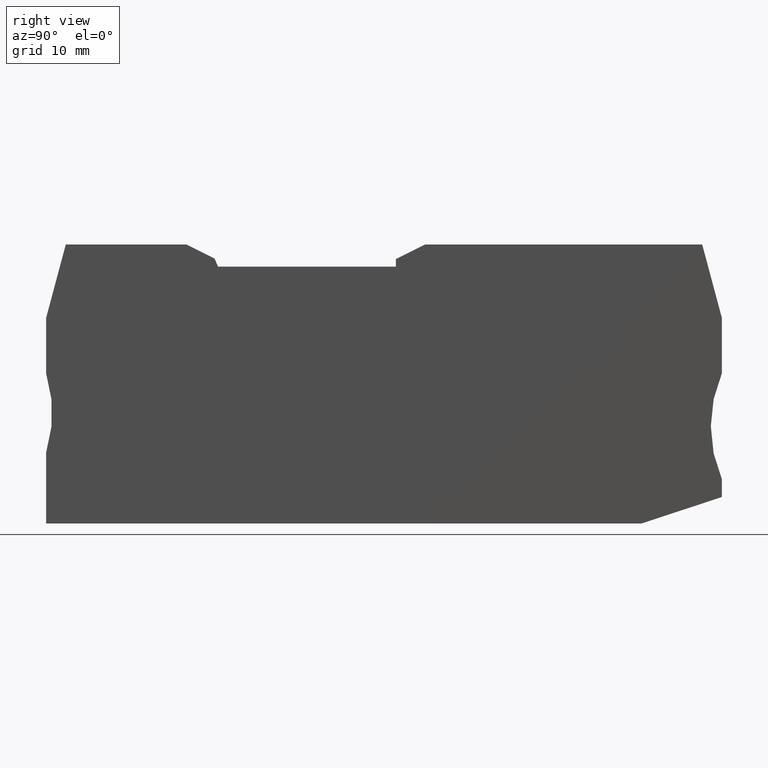
[diagram: clean part render]
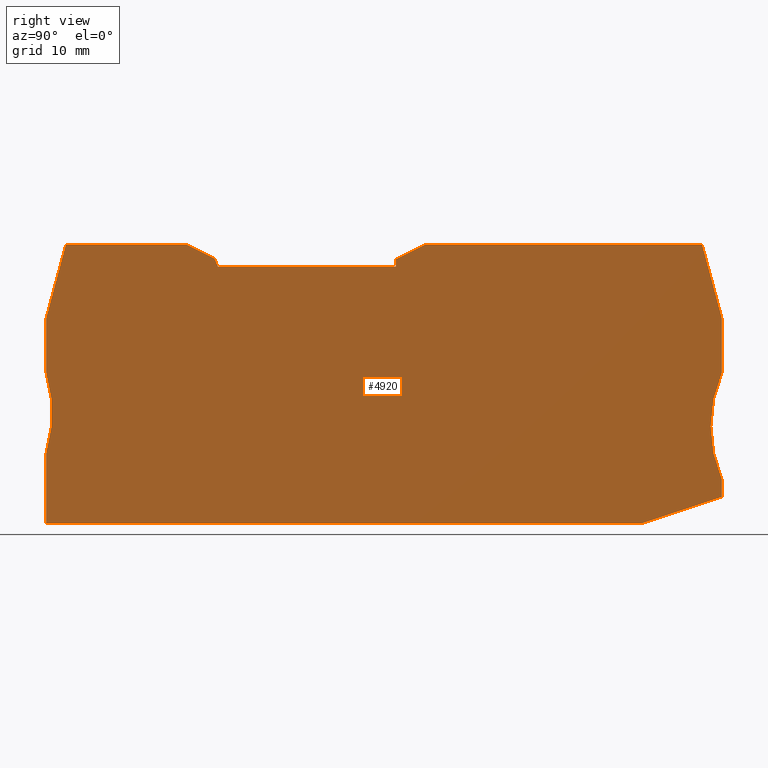
[diagram: same view with one face highlighted and labeled with its STEP entity id]
A machine part, right view. The second image highlights one B-rep face of the part: STEP entity #4920.
In plain terms, the highlighted planar face has unit normal (1, -0, -0).
Its self-contained STEP definition (entity closure, byte-faithful):
#120=CARTESIAN_POINT('',(28.1611811075906,-9.15000000000795,
2.19999999999844));
#130=VERTEX_POINT('',#120);
#280=CARTESIAN_POINT('',(48.278415052629,-9.15000000000795,
2.19999999999844));
#290=VERTEX_POINT('',#280);
#320=CARTESIAN_POINT('',(47.920285,-9.15000000000794,2.19999999999844));
#330=DIRECTION('',(-1.,0.,0.));
#340=VECTOR('',#330,1.);
#350=LINE('',#320,#340);
#360=EDGE_CURVE('',#290,#130,#350,.T.);
#530=CARTESIAN_POINT('',(47.920285,-47.4566600413391,2.19999999999833));
#540=DIRECTION('',(-0.949806217012117,-0.312838856482264,
-9.43689570931383E-16));
#550=VECTOR('',#540,1.);
#560=LINE('',#530,#550);
#570=CARTESIAN_POINT('',(85.1296808260528,-35.2009550015923,
2.19999999999837));
#580=VERTEX_POINT('',#570);
#590=CARTESIAN_POINT('',(76.0243170722712,-38.2000000000014,
2.19999999999836));
#600=VERTEX_POINT('',#590);
#610=EDGE_CURVE('',#580,#600,#560,.T.);
#1040=CARTESIAN_POINT('',(82.9015374042713,-6.65000000001046,
2.19999999999845));
#1050=VERTEX_POINT('',#1040);
#1100=CARTESIAN_POINT('',(47.920285,-6.65000000001046,2.19999999999845))
;
#1110=DIRECTION('',(1.,0.,0.));
#1120=VECTOR('',#1110,1.);
#1130=LINE('',#1100,#1120);
#1140=CARTESIAN_POINT('',(51.5784150526186,-6.65000000001046,
2.19999999999845));
#1150=VERTEX_POINT('',#1140);
#1160=EDGE_CURVE('',#1150,#1050,#1130,.T.);
#1510=CARTESIAN_POINT('',(85.1296808260528,-33.2000000000057,
2.19999999999837));
#1520=VERTEX_POINT('',#1510);
#1570=CARTESIAN_POINT('',(98.8774079109191,-27.2000000000027,
2.19999999999839));
#1580=DIRECTION('',(0.,0.,1.));
#1590=DIRECTION('',(1.,0.,0.));
#1600=AXIS2_PLACEMENT_3D('',#1570,#1580,#1590);
#1610=CIRCLE('',#1600,15.);
#1620=CARTESIAN_POINT('',(85.1296808260516,-21.2000000000027,
2.19999999999841));
#1630=VERTEX_POINT('',#1620);
#1640=EDGE_CURVE('',#1630,#1520,#1610,.T.);
#1960=CARTESIAN_POINT('',(38.6158283461584,-33.886127,2.19999999999837))
;
#1970=DIRECTION('',(-0.389303997086195,0.92110933002153,
2.80331313717852E-15));
#1980=VECTOR('',#1970,1.);
#1990=LINE('',#1960,#1980);
#2000=CARTESIAN_POINT('',(27.7810984886105,-8.25070883130206,
2.19999999999845));
#2010=VERTEX_POINT('',#2000);
#2020=EDGE_CURVE('',#130,#2010,#1990,.T.);
#2400=CARTESIAN_POINT('',(10.9578242464708,-6.65000000001046,
2.19999999999845));
#2410=VERTEX_POINT('',#2400);
#2560=CARTESIAN_POINT('',(24.5796808260341,-6.65000000001046,
2.19999999999845));
#2570=VERTEX_POINT('',#2560);
#2600=CARTESIAN_POINT('',(47.920285,-6.65000000001046,2.19999999999845))
;
#2610=DIRECTION('',(1.,0.,0.));
#2620=VECTOR('',#2610,1.);
#2630=LINE('',#2600,#2620);
#2640=EDGE_CURVE('',#2410,#2570,#2630,.T.);
#2810=CARTESIAN_POINT('',(47.920285,-18.3203020870181,2.19999999999842))
;
#2820=DIRECTION('',(0.894427190999537,-0.447213595500715,
-1.33226762955019E-15));
#2830=VECTOR('',#2820,1.);
#2840=LINE('',#2810,#2830);
#2850=EDGE_CURVE('',#2570,#2010,#2840,.T.);
#3220=CARTESIAN_POINT('',(48.278415052629,-8.30000000000333,
2.19999999999845));
#3230=VERTEX_POINT('',#3220);
#3260=CARTESIAN_POINT('',(48.278415052629,-33.886127,2.19999999999837));
#3270=DIRECTION('',(3.78653234506086E-29,1.,3.03161873061274E-15));
#3280=VECTOR('',#3270,1.);
#3290=LINE('',#3260,#3280);
#3300=EDGE_CURVE('',#290,#3230,#3290,.T.);
#3480=CARTESIAN_POINT('',(8.72968082469054,-33.886127,2.19999999999837))
;
#3490=DIRECTION('',(0.,1.,3.03161873061274E-15));
#3500=VECTOR('',#3490,1.);
#3510=LINE('',#3480,#3500);
#3520=CARTESIAN_POINT('',(8.72968082469054,-38.2000000000014,
2.19999999999836));
#3530=VERTEX_POINT('',#3520);
#3540=CARTESIAN_POINT('',(8.72968082469054,-30.2000000000115,
2.19999999999838));
#3550=VERTEX_POINT('',#3540);
#3560=EDGE_CURVE('',#3530,#3550,#3510,.T.);
#4070=CARTESIAN_POINT('',(85.1296808260516,-14.9655444566315,
2.19999999999843));
#4080=VERTEX_POINT('',#4070);
#4110=CARTESIAN_POINT('',(90.1994356388816,-33.886127,2.19999999999837))
;
#4120=DIRECTION('',(0.258819045102903,-0.965925826288966,
-2.96984659087229E-15));
#4130=VECTOR('',#4120,1.);
#4140=LINE('',#4110,#4130);
#4150=EDGE_CURVE('',#1050,#4080,#4140,.T.);
#4280=CARTESIAN_POINT('',(79.8284829547486,-6.65000000001046,
2.19999999999845));
#4290=DIRECTION('',(0.,-3.03161873061274E-15,1.));
#4300=DIRECTION('',(0.,-1.,-3.03161873061274E-15));
#4310=AXIS2_PLACEMENT_3D('',#4280,#4290,#4300);
#4320=PLANE('',#4310);
#4330=CARTESIAN_POINT('',(3.65992601186053,-33.886127,2.19999999999837))
;
#4340=DIRECTION('',(0.258819045102903,0.965925826288966,
2.96984659087229E-15));
#4350=VECTOR('',#4340,1.);
#4360=LINE('',#4330,#4350);
#4370=CARTESIAN_POINT('',(8.72968082469053,-14.9655444566315,
2.19999999999843));
#4380=VERTEX_POINT('',#4370);
#4390=EDGE_CURVE('',#4380,#2410,#4360,.T.);
#4400=ORIENTED_EDGE('',*,*,#4390,.F.);
#4410=ORIENTED_EDGE('',*,*,#2640,.F.);
#4420=ORIENTED_EDGE('',*,*,#2850,.F.);
#4430=ORIENTED_EDGE('',*,*,#2020,.T.);
#4440=ORIENTED_EDGE('',*,*,#360,.T.);
#4450=ORIENTED_EDGE('',*,*,#3300,.F.);
#4460=CARTESIAN_POINT('',(47.920285,-8.4790650263176,2.19999999999845));
#4470=DIRECTION('',(0.894427191000128,0.447213595499534,
1.36002320516582E-15));
#4480=VECTOR('',#4470,1.);
#4490=LINE('',#4460,#4480);
#4500=EDGE_CURVE('',#3230,#1150,#4490,.T.);
#4510=ORIENTED_EDGE('',*,*,#4500,.F.);
#4520=ORIENTED_EDGE('',*,*,#1160,.F.);
#4530=ORIENTED_EDGE('',*,*,#4150,.F.);
#4540=CARTESIAN_POINT('',(85.1296808260516,-33.886127,2.19999999999837))
;
#4550=DIRECTION('',(2.77555756156289E-17,-1.,-3.03161873061274E-15));
#4560=VECTOR('',#4550,1.);
#4570=LINE('',#4540,#4560);
#4580=EDGE_CURVE('',#4080,#1630,#4570,.T.);
#4590=ORIENTED_EDGE('',*,*,#4580,.F.);
#4600=ORIENTED_EDGE('',*,*,#1640,.F.);
#4610=CARTESIAN_POINT('',(85.1296808260528,-33.886127,2.19999999999837))
;
#4620=DIRECTION('',(0.,1.,3.03161873061274E-15));
#4630=VECTOR('',#4620,1.);
#4640=LINE('',#4610,#4630);
#4650=EDGE_CURVE('',#580,#1520,#4640,.T.);
#4660=ORIENTED_EDGE('',*,*,#4650,.T.);
#4670=ORIENTED_EDGE('',*,*,#610,.F.);
#4680=CARTESIAN_POINT('',(47.920285,-38.2000000000014,2.19999999999836))
;
#4690=DIRECTION('',(-1.,0.,0.));
#4700=VECTOR('',#4690,1.);
#4710=LINE('',#4680,#4700);
#4720=EDGE_CURVE('',#600,#3530,#4710,.T.);
#4730=ORIENTED_EDGE('',*,*,#4720,.F.);
#4740=ORIENTED_EDGE('',*,*,#3560,.F.);
#4750=CARTESIAN_POINT('',(-5.57940719656269,-25.7000000000085,
2.19999999999839));
#4760=DIRECTION('',(0.,0.,1.));
#4770=DIRECTION('',(1.,0.,0.));
#4780=AXIS2_PLACEMENT_3D('',#4750,#4760,#4770);
#4790=CIRCLE('',#4780,15.);
#4800=CARTESIAN_POINT('',(8.72968082469053,-21.2000000000056,
2.19999999999841));
#4810=VERTEX_POINT('',#4800);
#4820=EDGE_CURVE('',#3550,#4810,#4790,.T.);
#4830=ORIENTED_EDGE('',*,*,#4820,.F.);
#4840=CARTESIAN_POINT('',(8.72968082469053,-33.886127,2.19999999999837))
;
#4850=DIRECTION('',(0.,1.,3.03161873061274E-15));
#4860=VECTOR('',#4850,1.);
#4870=LINE('',#4840,#4860);
#4880=EDGE_CURVE('',#4810,#4380,#4870,.T.);
#4890=ORIENTED_EDGE('',*,*,#4880,.F.);
#4900=EDGE_LOOP('',(#4890,#4830,#4740,#4730,#4670,#4660,#4600,#4590,
#4530,#4520,#4510,#4450,#4440,#4430,#4420,#4410,#4400));
#4910=FACE_OUTER_BOUND('',#4900,.T.);
#4920=ADVANCED_FACE('',(#4910),#4320,.T.);